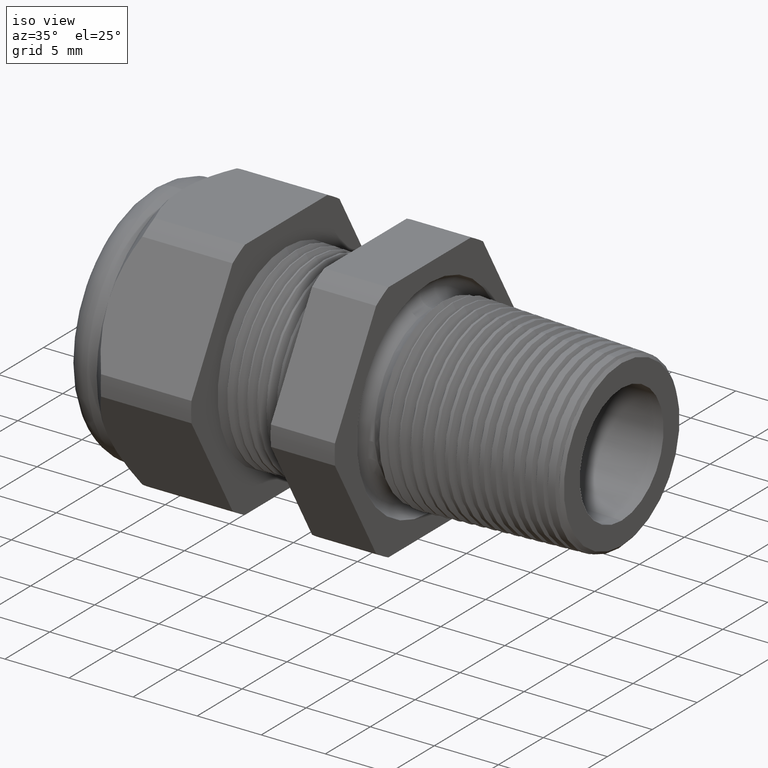
[diagram: clean part render]
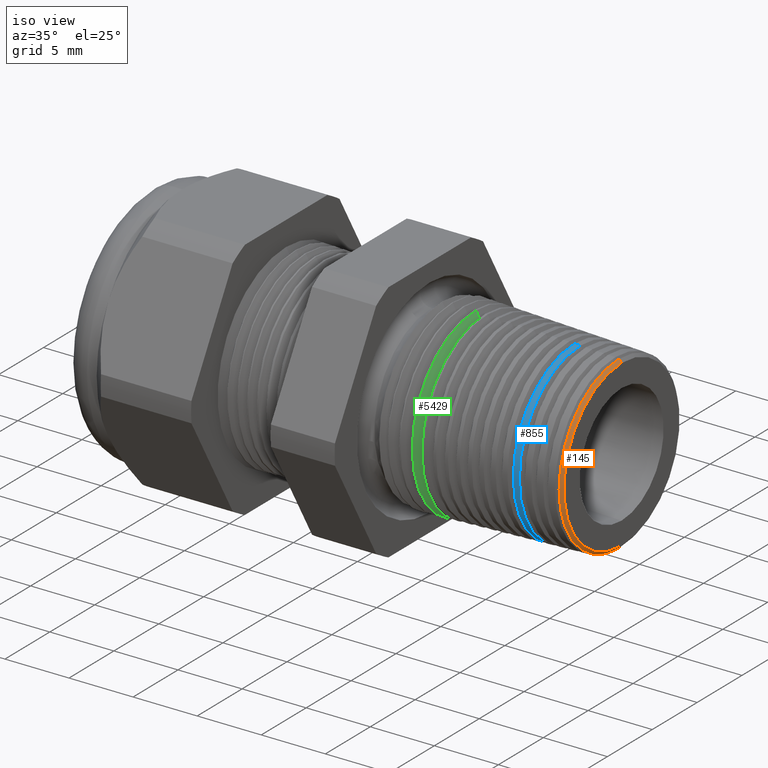
[diagram: same view with three faces highlighted in distinct colors, each labeled with its STEP entity id]
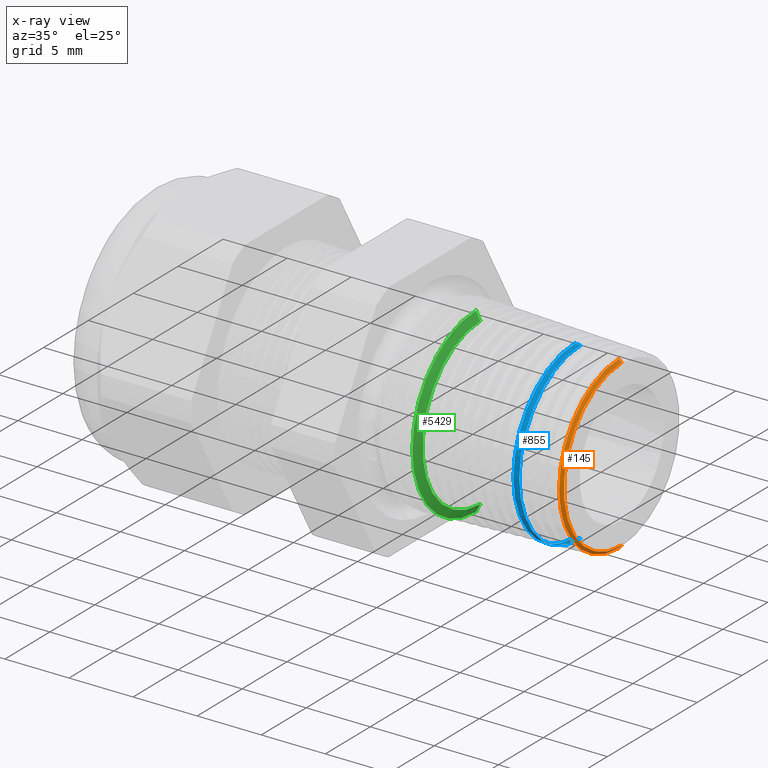
[diagram: x-ray of the same camera — body ghosted, the three highlighted faces saturated]
A machine part, iso view with three faces highlighted in distinct colors.
The next image is the same camera in x-ray (body ghosted, the three faces saturated) — at least one of them is partly hidden behind the body in this view.
Their STEP definitions:

[orange] entity #145 — the highlighted conical surface has half-angle 47 deg.
#145 = ADVANCED_FACE ( 'NONE', ( #2017 ), #2012, .T. ) ;
#146 = EDGE_LOOP ( 'NONE', ( #147, #148, #149, #150 ) ) ;
#147 = ORIENTED_EDGE ( 'NONE', *, *, #559, .F. ) ;
#148 = ORIENTED_EDGE ( 'NONE', *, *, #1229, .F. ) ;
#149 = ORIENTED_EDGE ( 'NONE', *, *, #562, .T. ) ;
#150 = ORIENTED_EDGE ( 'NONE', *, *, #151, .F. ) ;
#151 = EDGE_CURVE ( 'NONE', #1507, #1505, #2005, .T. ) ;
#556 = VERTEX_POINT ( 'NONE', #2673 ) ;
#557 = VERTEX_POINT ( 'NONE', #2672 ) ;
#559 = EDGE_CURVE ( 'NONE', #556, #1507, #2671, .T. ) ;
#562 = EDGE_CURVE ( 'NONE', #557, #1505, #2729, .T. ) ;
#1229 = EDGE_CURVE ( 'NONE', #557, #556, #4015, .T. ) ;
#1505 = VERTEX_POINT ( 'NONE', #4495 ) ;
#1507 = VERTEX_POINT ( 'NONE', #4494 ) ;
#2003 = DIRECTION ( 'NONE',  ( -1.000000000000000000, 0.0000000000000000000, 0.0000000000000000000 ) ) ;
#2004 = AXIS2_PLACEMENT_3D ( 'NONE', #2011, #2003, #2065 ) ;
#2005 = CIRCLE ( 'NONE', #2004, 0.2626083361723404700 ) ;
#2007 = DIRECTION ( 'NONE',  ( 0.0000000000000000000, 0.0000000000000000000, 1.000000000000000000 ) ) ;
#2008 = DIRECTION ( 'NONE',  ( -1.000000000000000000, 0.0000000000000000000, 0.0000000000000000000 ) ) ;
#2009 = CARTESIAN_POINT ( 'NONE',  ( 0.2799999999999999700, 0.0000000000000000000, 0.0000000000000000000 ) ) ;
#2010 = AXIS2_PLACEMENT_3D ( 'NONE', #2009, #2008, #2007 ) ;
#2011 = CARTESIAN_POINT ( 'NONE',  ( 0.2716305515505094700, 0.0000000000000000000, 0.0000000000000000000 ) ) ;
#2012 = CONICAL_SURFACE ( 'NONE', #2010, 0.2536332015349424000, 0.8203047484373224800 ) ;
#2017 = FACE_OUTER_BOUND ( 'NONE', #146, .T. ) ;
#2065 = DIRECTION ( 'NONE',  ( 0.0000000000000000000, 0.0000000000000000000, -1.000000000000000000 ) ) ;
#2671 = LINE ( 'NONE', #2732, #2731 ) ;
#2672 = CARTESIAN_POINT ( 'NONE',  ( 0.2799999999999999700, 0.0000000000000000000, 0.2536332015349424000 ) ) ;
#2673 = CARTESIAN_POINT ( 'NONE',  ( 0.2799999999999999700, 3.161067733700657500E-017, -0.2536332015349424000 ) ) ;
#2726 = DIRECTION ( 'NONE',  ( -0.6819983600625075800, 0.0000000000000000000, 0.7313537016191620200 ) ) ;
#2727 = VECTOR ( 'NONE', #2726, 39.37007874015748900 ) ;
#2728 = CARTESIAN_POINT ( 'NONE',  ( 0.2799999999999999700, 0.0000000000000000000, 0.2536332015349424000 ) ) ;
#2729 = LINE ( 'NONE', #2728, #2727 ) ;
#2730 = DIRECTION ( 'NONE',  ( -0.6819983600625075800, 8.956499697324750600E-017, -0.7313537016191620200 ) ) ;
#2731 = VECTOR ( 'NONE', #2730, 39.37007874015748900 ) ;
#2732 = CARTESIAN_POINT ( 'NONE',  ( 0.2799999999999999700, 3.106110884172627800E-017, -0.2536332015349424000 ) ) ;
#4011 = DIRECTION ( 'NONE',  ( 0.0000000000000000000, 0.0000000000000000000, -1.000000000000000000 ) ) ;
#4012 = DIRECTION ( 'NONE',  ( 1.000000000000000000, 0.0000000000000000000, 0.0000000000000000000 ) ) ;
#4013 = CARTESIAN_POINT ( 'NONE',  ( 0.2799999999999999700, 0.0000000000000000000, 0.0000000000000000000 ) ) ;
#4014 = AXIS2_PLACEMENT_3D ( 'NONE', #4013, #4012, #4011 ) ;
#4015 = CIRCLE ( 'NONE', #4014, 0.2536332015349424000 ) ;
#4494 = CARTESIAN_POINT ( 'NONE',  ( 0.2716305515505094700, 3.216024583228687900E-017, -0.2626083361723404200 ) ) ;
#4495 = CARTESIAN_POINT ( 'NONE',  ( 0.2716305515505094700, 0.0000000000000000000, 0.2626083361723404200 ) ) ;

[blue] entity #855 — the highlighted conical surface has half-angle 2 deg.
#819 = EDGE_CURVE ( 'NONE', #1627, #1604, #3201, .T. ) ;
#822 = EDGE_CURVE ( 'NONE', #1624, #1614, #3192, .T. ) ;
#836 = ORIENTED_EDGE ( 'NONE', *, *, #837, .F. ) ;
#837 = EDGE_CURVE ( 'NONE', #1604, #1614, #3221, .T. ) ;
#855 = ADVANCED_FACE ( 'NONE', ( #3246 ), #3245, .T. ) ;
#856 = EDGE_LOOP ( 'NONE', ( #857, #858, #860, #836 ) ) ;
#857 = ORIENTED_EDGE ( 'NONE', *, *, #819, .F. ) ;
#858 = ORIENTED_EDGE ( 'NONE', *, *, #859, .F. ) ;
#859 = EDGE_CURVE ( 'NONE', #1624, #1627, #3239, .T. ) ;
#860 = ORIENTED_EDGE ( 'NONE', *, *, #822, .T. ) ;
#1604 = VERTEX_POINT ( 'NONE', #4686 ) ;
#1614 = VERTEX_POINT ( 'NONE', #4732 ) ;
#1624 = VERTEX_POINT ( 'NONE', #4712 ) ;
#1627 = VERTEX_POINT ( 'NONE', #4766 ) ;
#3189 = DIRECTION ( 'NONE',  ( -0.9993908270190959800, 0.0000000000000000000, 0.03489949670249371100 ) ) ;
#3190 = VECTOR ( 'NONE', #3189, 39.37007874015748100 ) ;
#3191 = CARTESIAN_POINT ( 'NONE',  ( 0.2799999999999999700, 0.0000000000000000000, 0.2640013610877269800 ) ) ;
#3192 = LINE ( 'NONE', #3191, #3190 ) ;
#3193 = DIRECTION ( 'NONE',  ( -0.9993908270190959800, 4.273955692856252800E-018, -0.03489949670249371100 ) ) ;
#3194 = VECTOR ( 'NONE', #3193, 39.37007874015748100 ) ;
#3195 = CARTESIAN_POINT ( 'NONE',  ( 0.2799999999999999700, 3.233084218266294700E-017, -0.2640013610877269800 ) ) ;
#3201 = LINE ( 'NONE', #3195, #3194 ) ;
#3217 = DIRECTION ( 'NONE',  ( 0.0000000000000000000, 0.0000000000000000000, -1.000000000000000000 ) ) ;
#3218 = DIRECTION ( 'NONE',  ( -1.000000000000000000, 0.0000000000000000000, 0.0000000000000000000 ) ) ;
#3219 = CARTESIAN_POINT ( 'NONE',  ( 0.1356508413671558000, 0.0000000000000000000, 0.0000000000000000000 ) ) ;
#3220 = AXIS2_PLACEMENT_3D ( 'NONE', #3219, #3218, #3217 ) ;
#3221 = CIRCLE ( 'NONE', #3220, 0.2690421447826712400 ) ;
#3237 = DIRECTION ( 'NONE',  ( 1.000000000000000000, 0.0000000000000000000, 0.0000000000000000000 ) ) ;
#3238 = AXIS2_PLACEMENT_3D ( 'NONE', #3244, #3237, #3300 ) ;
#3239 = CIRCLE ( 'NONE', #3238, 0.2684150621668731100 ) ;
#3240 = DIRECTION ( 'NONE',  ( 0.0000000000000000000, 0.0000000000000000000, 1.000000000000000000 ) ) ;
#3241 = DIRECTION ( 'NONE',  ( -1.000000000000000000, 0.0000000000000000000, 0.0000000000000000000 ) ) ;
#3242 = CARTESIAN_POINT ( 'NONE',  ( 0.2799999999999999700, 0.0000000000000000000, 0.0000000000000000000 ) ) ;
#3243 = AXIS2_PLACEMENT_3D ( 'NONE', #3242, #3241, #3240 ) ;
#3244 = CARTESIAN_POINT ( 'NONE',  ( 0.1536081379824684700, 0.0000000000000000000, 0.0000000000000000000 ) ) ;
#3245 = CONICAL_SURFACE ( 'NONE', #3243, 0.2640013610877269800, 0.03490658503987932600 ) ;
#3246 = FACE_OUTER_BOUND ( 'NONE', #856, .T. ) ;
#3300 = DIRECTION ( 'NONE',  ( 0.0000000000000000000, 0.0000000000000000000, 1.000000000000000000 ) ) ;
#4686 = CARTESIAN_POINT ( 'NONE',  ( 0.1356508413671558000, 3.294816014438371700E-017, -0.2690421447826712400 ) ) ;
#4712 = CARTESIAN_POINT ( 'NONE',  ( 0.1536081379824684700, 0.0000000000000000000, 0.2684150621668731100 ) ) ;
#4732 = CARTESIAN_POINT ( 'NONE',  ( 0.1356508413671558000, 0.0000000000000000000, 0.2690421447826712400 ) ) ;
#4766 = CARTESIAN_POINT ( 'NONE',  ( 0.1536081379824684700, 3.290976240847180400E-017, -0.2684150621668731100 ) ) ;

[green] entity #5429 — the highlighted conical surface has half-angle 62 deg.
#182 = ORIENTED_EDGE ( 'NONE', *, *, #1851, .F. ) ;
#183 = ORIENTED_EDGE ( 'NONE', *, *, #184, .F. ) ;
#184 = EDGE_CURVE ( 'NONE', #1753, #1752, #2092, .T. ) ;
#185 = ORIENTED_EDGE ( 'NONE', *, *, #1857, .T. ) ;
#186 = ORIENTED_EDGE ( 'NONE', *, *, #934, .T. ) ;
#934 = EDGE_CURVE ( 'NONE', #1855, #1852, #3414, .T. ) ;
#1752 = VERTEX_POINT ( 'NONE', #4959 ) ;
#1753 = VERTEX_POINT ( 'NONE', #4958 ) ;
#1851 = EDGE_CURVE ( 'NONE', #1752, #1852, #5170, .T. ) ;
#1852 = VERTEX_POINT ( 'NONE', #5166 ) ;
#1855 = VERTEX_POINT ( 'NONE', #5160 ) ;
#1857 = EDGE_CURVE ( 'NONE', #1753, #1855, #5159, .T. ) ;
#2084 = DIRECTION ( 'NONE',  ( 0.0000000000000000000, 0.0000000000000000000, -1.000000000000000000 ) ) ;
#2085 = DIRECTION ( 'NONE',  ( 1.000000000000000000, 0.0000000000000000000, 0.0000000000000000000 ) ) ;
#2086 = CARTESIAN_POINT ( 'NONE',  ( -0.1537370280109210400, 0.0000000000000000000, 0.0000000000000000000 ) ) ;
#2087 = AXIS2_PLACEMENT_3D ( 'NONE', #2086, #2085, #2084 ) ;
#2092 = CIRCLE ( 'NONE', #2087, 0.2540184132628080000 ) ;
#3411 = DIRECTION ( 'NONE',  ( 0.0000000000000000000, 0.0000000000000000000, 1.000000000000000000 ) ) ;
#3412 = DIRECTION ( 'NONE',  ( 1.000000000000000000, 0.0000000000000000000, 0.0000000000000000000 ) ) ;
#3413 = AXIS2_PLACEMENT_3D ( 'NONE', #3419, #3412, #3411 ) ;
#3414 = CIRCLE ( 'NONE', #3413, 0.2796232141890905300 ) ;
#3419 = CARTESIAN_POINT ( 'NONE',  ( -0.1673513421592404700, 0.0000000000000000000, 0.0000000000000000000 ) ) ;
#4958 = CARTESIAN_POINT ( 'NONE',  ( -0.1537370280109210400, 0.0000000000000000000, 0.2540184132628080000 ) ) ;
#4959 = CARTESIAN_POINT ( 'NONE',  ( -0.1537370280109210400, 3.267612554753759700E-017, -0.2540184132628080000 ) ) ;
#5156 = DIRECTION ( 'NONE',  ( -0.4694715627859018000, 0.0000000000000000000, 0.8829475928589209900 ) ) ;
#5157 = VECTOR ( 'NONE', #5156, 39.37007874015748100 ) ;
#5158 = CARTESIAN_POINT ( 'NONE',  ( -0.1699999999999999600, 0.0000000000000000000, 0.2846046150878539000 ) ) ;
#5159 = LINE ( 'NONE', #5158, #5157 ) ;
#5160 = CARTESIAN_POINT ( 'NONE',  ( -0.1673513421592404700, 0.0000000000000000000, 0.2796232141890905300 ) ) ;
#5166 = CARTESIAN_POINT ( 'NONE',  ( -0.1673513421592404700, 3.425523832454768000E-017, -0.2796232141890905300 ) ) ;
#5167 = DIRECTION ( 'NONE',  ( -0.4694715627859018000, 1.081298943409538000E-016, -0.8829475928589209900 ) ) ;
#5168 = VECTOR ( 'NONE', #5167, 39.37007874015748100 ) ;
#5169 = CARTESIAN_POINT ( 'NONE',  ( -0.1699999999999999600, 3.485401308899047800E-017, -0.2846046150878539000 ) ) ;
#5170 = LINE ( 'NONE', #5169, #5168 ) ;
#5177 = CONICAL_SURFACE ( 'NONE', #5242, 0.2846046150878539000, 1.082104136236471800 ) ;
#5178 = FACE_OUTER_BOUND ( 'NONE', #5427, .T. ) ;
#5182 = CARTESIAN_POINT ( 'NONE',  ( -0.1699999999999999600, 0.0000000000000000000, 0.0000000000000000000 ) ) ;
#5239 = DIRECTION ( 'NONE',  ( 0.0000000000000000000, 0.0000000000000000000, 1.000000000000000000 ) ) ;
#5240 = DIRECTION ( 'NONE',  ( -1.000000000000000000, 0.0000000000000000000, 0.0000000000000000000 ) ) ;
#5242 = AXIS2_PLACEMENT_3D ( 'NONE', #5182, #5240, #5239 ) ;
#5427 = EDGE_LOOP ( 'NONE', ( #182, #183, #185, #186 ) ) ;
#5429 = ADVANCED_FACE ( 'NONE', ( #5178 ), #5177, .T. ) ;